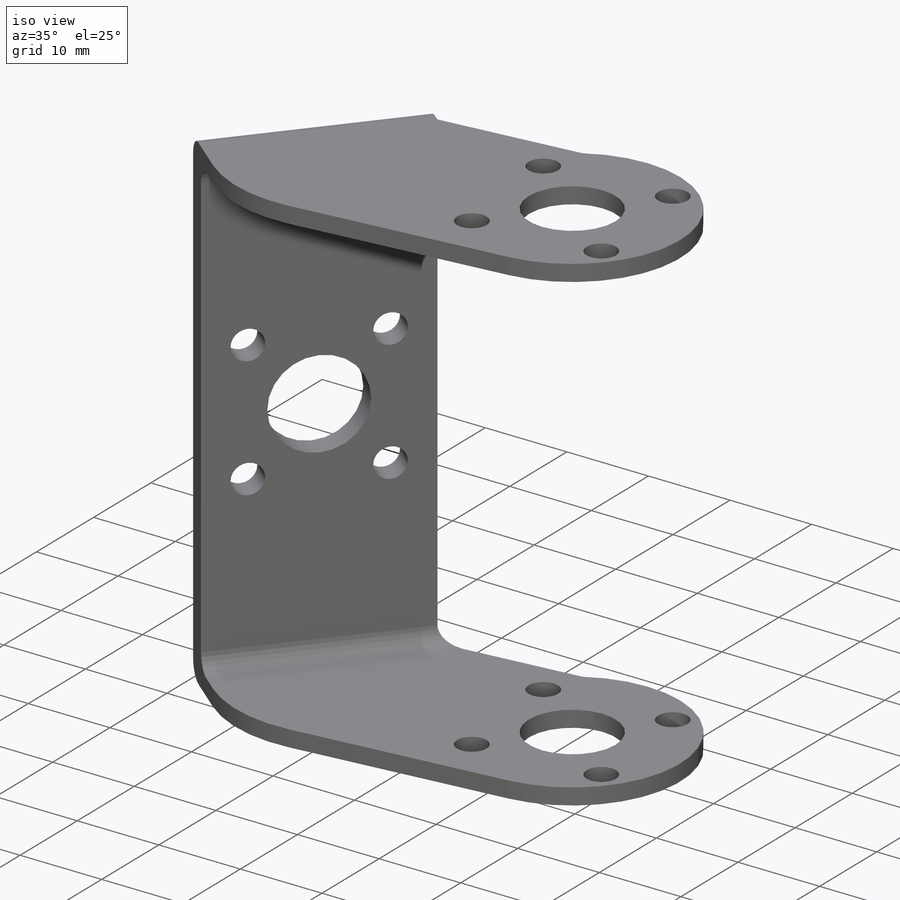
[diagram: iso view]
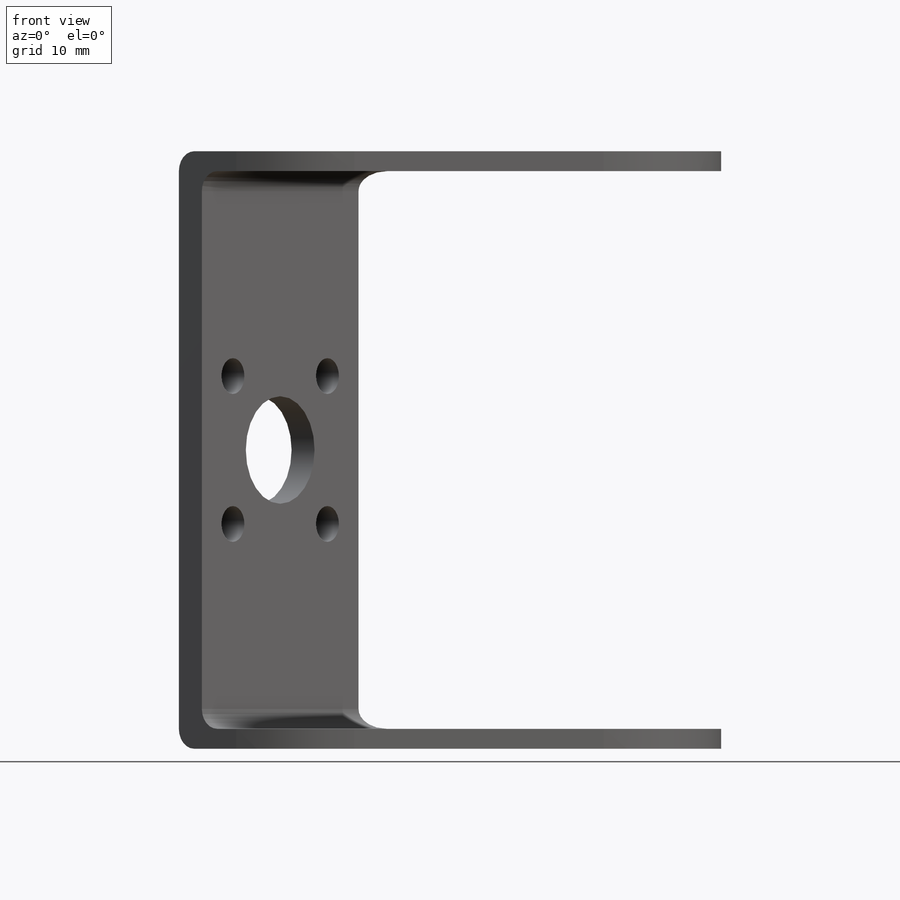
[diagram: front view]
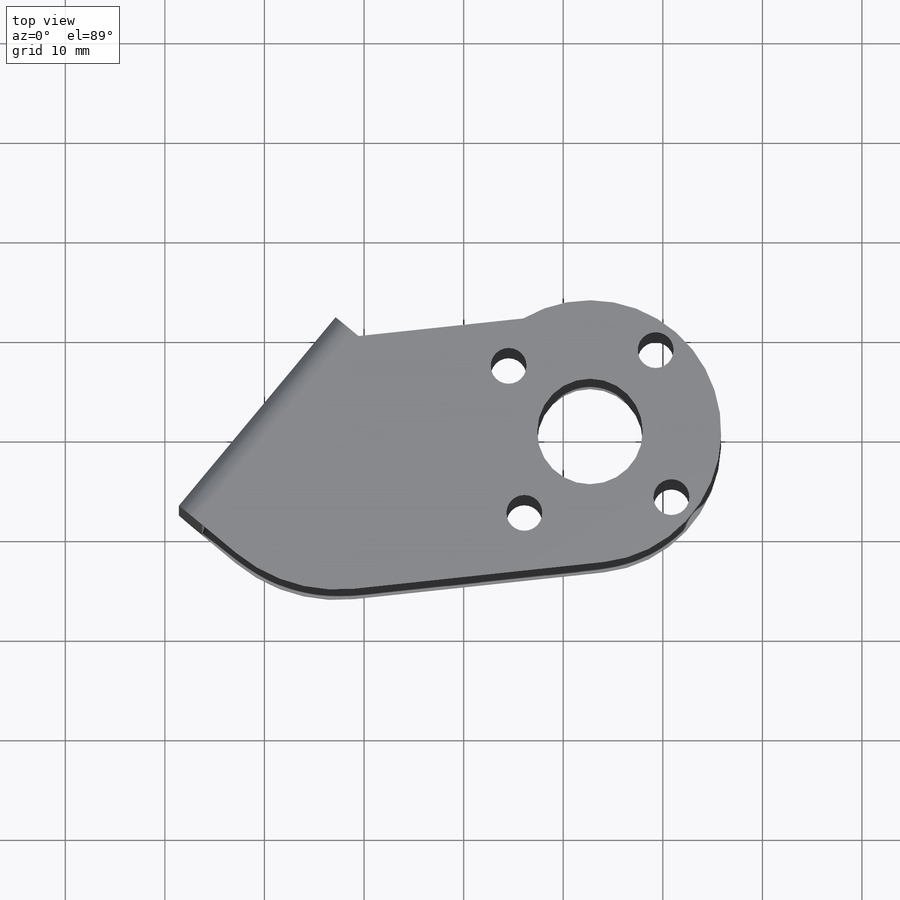
[diagram: top view]
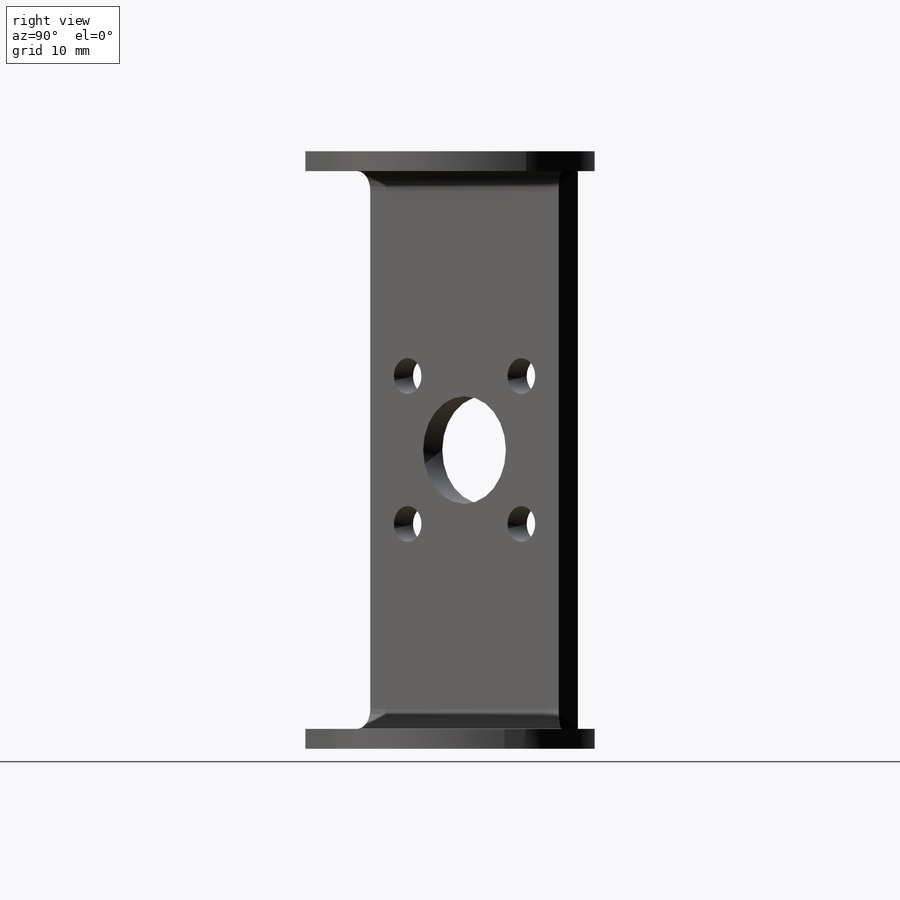
[diagram: right view]
SOLIDWORKS PART (.sldprt)
format: sldprt  version: not decoded by parser v0  size: 288,256 bytes
history: native  units: mm
features: sketch x7, extrude x4, plane x3, cut_extrude x3, material x1, fillet x1 (+8 scaffold rows collapsed)
feature tree (27):
  scaffold x8  (default folders/planes/origin — collapsed)
  material  "Material <sin especificar>"
  plane  "Alzado"
  plane  "Planta"
  plane  "Vista lateral"
  sketch  "Croquis1"  dims[c1.D1=26.36mm c1.D2=31.76mm c1.D7=10.6mm c1.D3=25.18mm c1.D4=~45.733582mm c2.D4=~239.337803deg c3.D4=~45.733582mm c4.D4=134.15deg c4.D5=25.37mm c4.D6=24.61mm]
  extrude  "Saliente-Extruir1"  Depth=2mm
  sketch  "Croquis2"  dims[D1=21.0mm D2=3.6mm]
  cut_extrude  "Cortar-Extruir1"  Depth=2mm
  sketch  "Croquis3"  dims[D1=60.0mm]
  extrude  "Saliente-Extruir2"  Depth=2mm
  sketch  "Croquis4"
  extrude  "Saliente-Extruir3"  Depth=2mm
  sketch  "Croquis6"
  sketch  "Croquis5"  dims[c1.D2=3.6mm c1.D3=21.0mm c1.D4=10.8mm c1.D5=~16.119857mm c2.D5=45.0deg c2.D1=4.0]
  cut_extrude  "Cortar-Extruir2"  [1 undecoded]
  extrude  "Saliente-Extruir4"  Depth=1mm
  sketch  "Croquis7"
  cut_extrude  "Cortar-Extruir3"  [1 undecoded]
  fillet  "Redondeo1"  Radius=2mm
decode coverage: 10 of 15 modeling features carry decoded parameters
note: ~ marks probable driven/reference dimensions
note: 2 parameter values undecoded
note: suppression state not decoded; provenance and decode notes live in map.json
